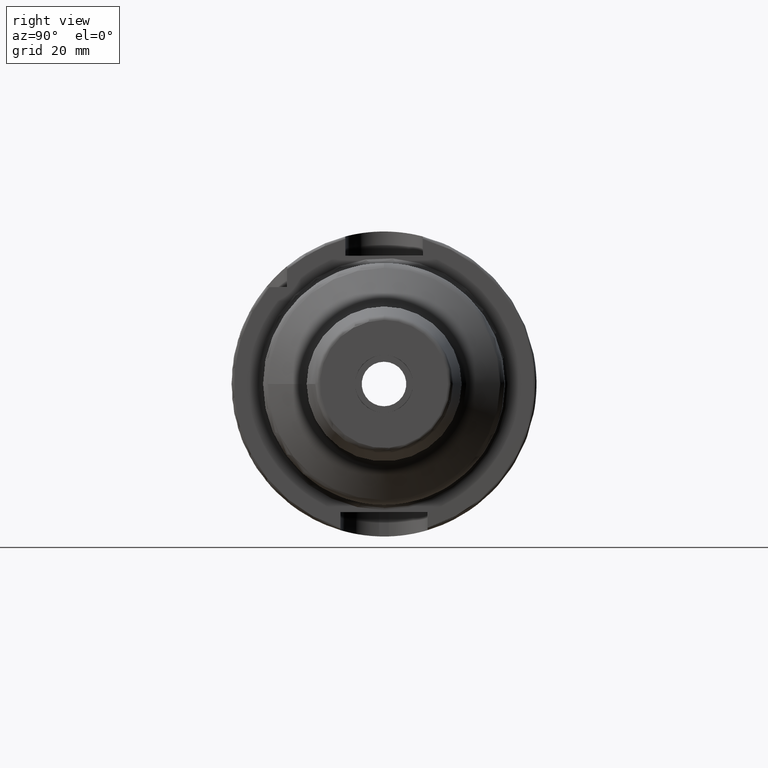
[diagram: clean part render]
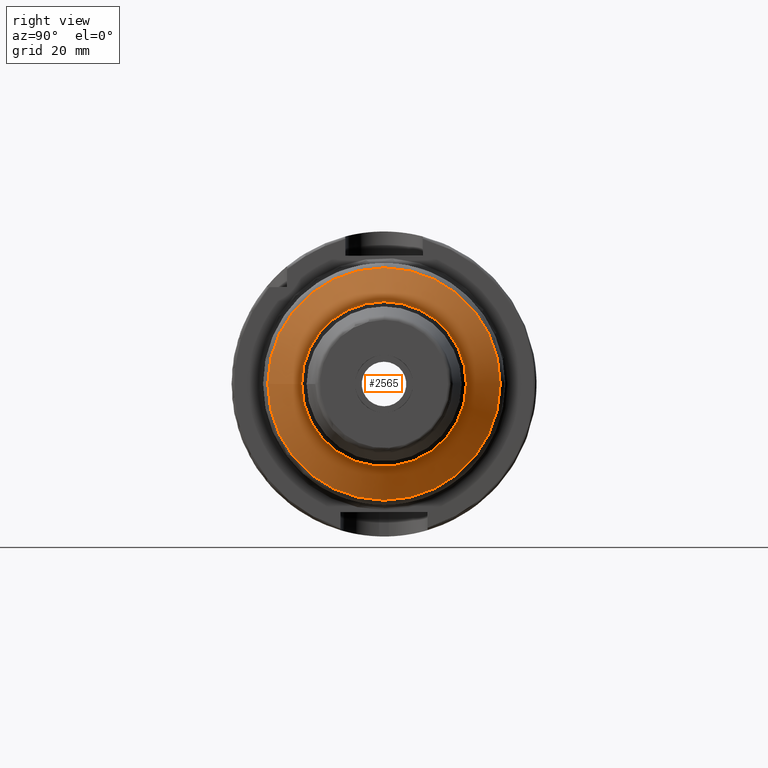
[diagram: same view with one face highlighted and labeled with its STEP entity id]
A machine part, right view. The second image highlights one B-rep face of the part: STEP entity #2565.
In plain terms, the highlighted conical surface has half-angle 60 deg.
Its self-contained STEP definition (entity closure, byte-faithful):
#185=CONICAL_SURFACE('',#2741,20.5,1.0471975511966);
#211=FACE_OUTER_BOUND('',#349,.T.);
#349=EDGE_LOOP('',(#1708,#1709,#1710,#1711,#1712,#1713,#1714,#1715));
#491=LINE('',#3996,#608);
#608=VECTOR('',#3146,20.5);
#734=CIRCLE('',#2734,17.);
#739=CIRCLE('',#2739,17.);
#740=CIRCLE('',#2740,17.);
#741=CIRCLE('',#2742,24.);
#742=CIRCLE('',#2743,24.);
#743=CIRCLE('',#2744,24.);
#962=VERTEX_POINT('',#3981);
#963=VERTEX_POINT('',#3982);
#967=VERTEX_POINT('',#3991);
#968=VERTEX_POINT('',#3995);
#969=VERTEX_POINT('',#3997);
#970=VERTEX_POINT('',#3999);
#1262=EDGE_CURVE('',#962,#963,#734,.T.);
#1267=EDGE_CURVE('',#963,#967,#739,.T.);
#1268=EDGE_CURVE('',#967,#962,#740,.T.);
#1269=EDGE_CURVE('',#967,#968,#491,.T.);
#1270=EDGE_CURVE('',#969,#968,#741,.T.);
#1271=EDGE_CURVE('',#970,#969,#742,.T.);
#1272=EDGE_CURVE('',#968,#970,#743,.T.);
#1708=ORIENTED_EDGE('',*,*,#1262,.F.);
#1709=ORIENTED_EDGE('',*,*,#1268,.F.);
#1710=ORIENTED_EDGE('',*,*,#1269,.T.);
#1711=ORIENTED_EDGE('',*,*,#1270,.F.);
#1712=ORIENTED_EDGE('',*,*,#1271,.F.);
#1713=ORIENTED_EDGE('',*,*,#1272,.F.);
#1714=ORIENTED_EDGE('',*,*,#1269,.F.);
#1715=ORIENTED_EDGE('',*,*,#1267,.F.);
#2565=ADVANCED_FACE('',(#211),#185,.T.);
#2734=AXIS2_PLACEMENT_3D('',#3983,#3130,#3131);
#2739=AXIS2_PLACEMENT_3D('',#3992,#3140,#3141);
#2740=AXIS2_PLACEMENT_3D('',#3993,#3142,#3143);
#2741=AXIS2_PLACEMENT_3D('',#3994,#3144,#3145);
#2742=AXIS2_PLACEMENT_3D('',#3998,#3147,#3148);
#2743=AXIS2_PLACEMENT_3D('',#4000,#3149,#3150);
#2744=AXIS2_PLACEMENT_3D('',#4001,#3151,#3152);
#3130=DIRECTION('center_axis',(1.,0.,0.));
#3131=DIRECTION('ref_axis',(0.,-1.,3.06161699786838E-17));
#3140=DIRECTION('center_axis',(1.,0.,0.));
#3141=DIRECTION('ref_axis',(0.,-1.,3.06161699786838E-17));
#3142=DIRECTION('center_axis',(1.,0.,0.));
#3143=DIRECTION('ref_axis',(0.,-1.,3.06161699786838E-17));
#3144=DIRECTION('center_axis',(-1.,0.,0.));
#3145=DIRECTION('ref_axis',(0.,1.,0.));
#3146=DIRECTION('',(-0.500000000000001,-0.866025403784438,-1.06057523872491E-16));
#3147=DIRECTION('center_axis',(-1.,0.,0.));
#3148=DIRECTION('ref_axis',(0.,-1.,3.06161699786838E-17));
#3149=DIRECTION('center_axis',(-1.,0.,0.));
#3150=DIRECTION('ref_axis',(0.,-1.,3.06161699786838E-17));
#3151=DIRECTION('center_axis',(-1.,0.,0.));
#3152=DIRECTION('ref_axis',(0.,-1.,3.06161699786838E-17));
#3981=CARTESIAN_POINT('',(49.4226497308104,17.,-1.04094977927525E-15));
#3982=CARTESIAN_POINT('',(49.4226497308104,-2.0818995585505E-15,17.));
#3983=CARTESIAN_POINT('Origin',(49.4226497308104,0.,-2.60237444818813E-15));
#3991=CARTESIAN_POINT('',(49.4226497308104,-17.,-2.0818995585505E-15));
#3992=CARTESIAN_POINT('Origin',(49.4226497308104,0.,-2.60237444818813E-15));
#3993=CARTESIAN_POINT('Origin',(49.4226497308104,0.,-2.60237444818813E-15));
#3994=CARTESIAN_POINT('Origin',(47.4019237886467,0.,0.));
#3995=CARTESIAN_POINT('',(45.381197846483,-24.,-2.93915231795365E-15));
#3996=CARTESIAN_POINT('',(47.4019237886467,-20.5,-2.51052593825207E-15));
#3997=CARTESIAN_POINT('',(45.381197846483,24.,-7.34788079488412E-15));
#3998=CARTESIAN_POINT('Origin',(45.381197846483,0.,-3.67394039744206E-15));
#3999=CARTESIAN_POINT('',(45.381197846483,-2.93915231795365E-15,24.));
#4000=CARTESIAN_POINT('Origin',(45.381197846483,0.,-3.67394039744206E-15));
#4001=CARTESIAN_POINT('Origin',(45.381197846483,0.,-3.67394039744206E-15));